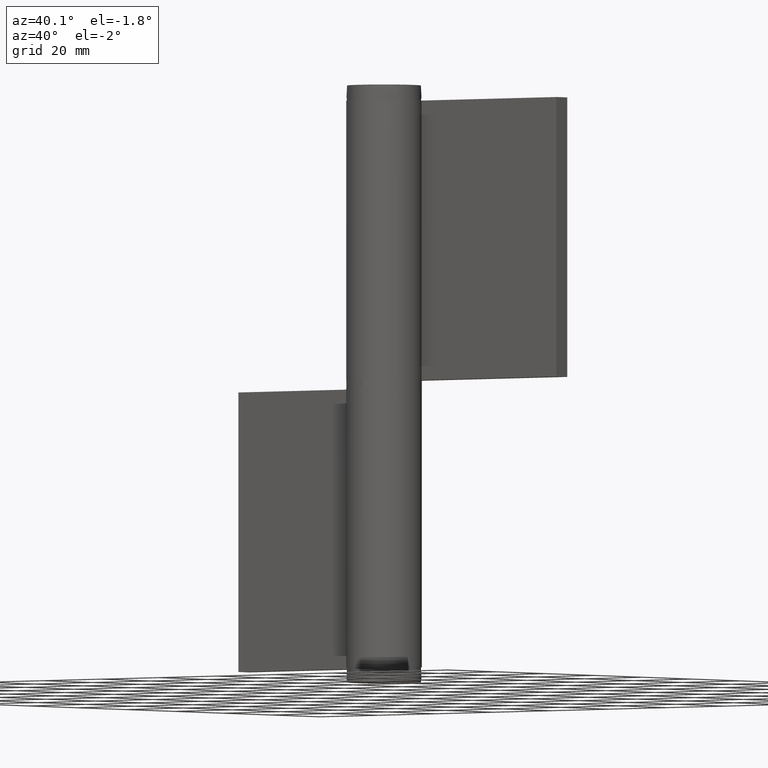
[diagram: clean part render]
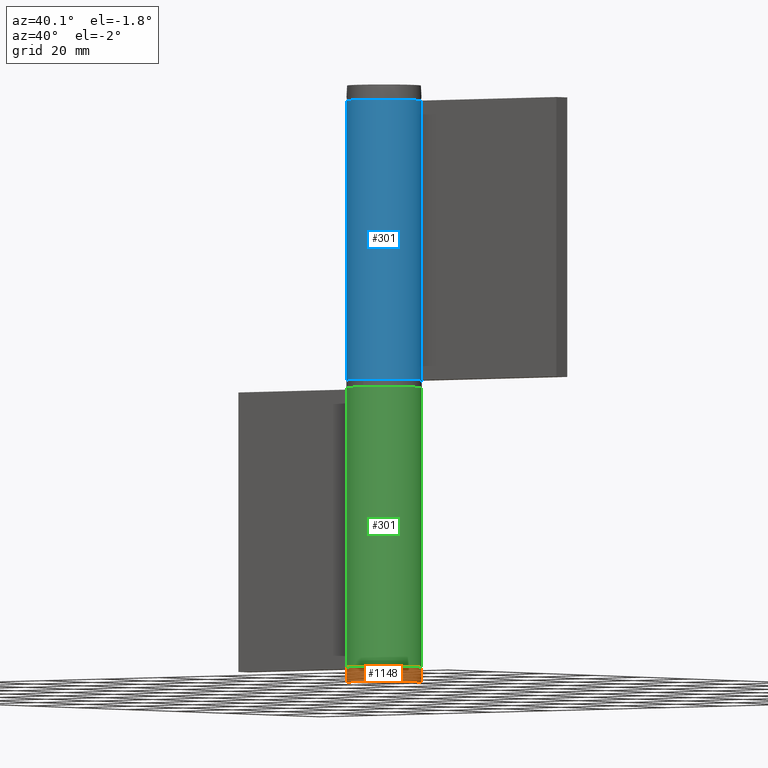
[diagram: same view with three faces highlighted in distinct colors, each labeled with its STEP entity id]
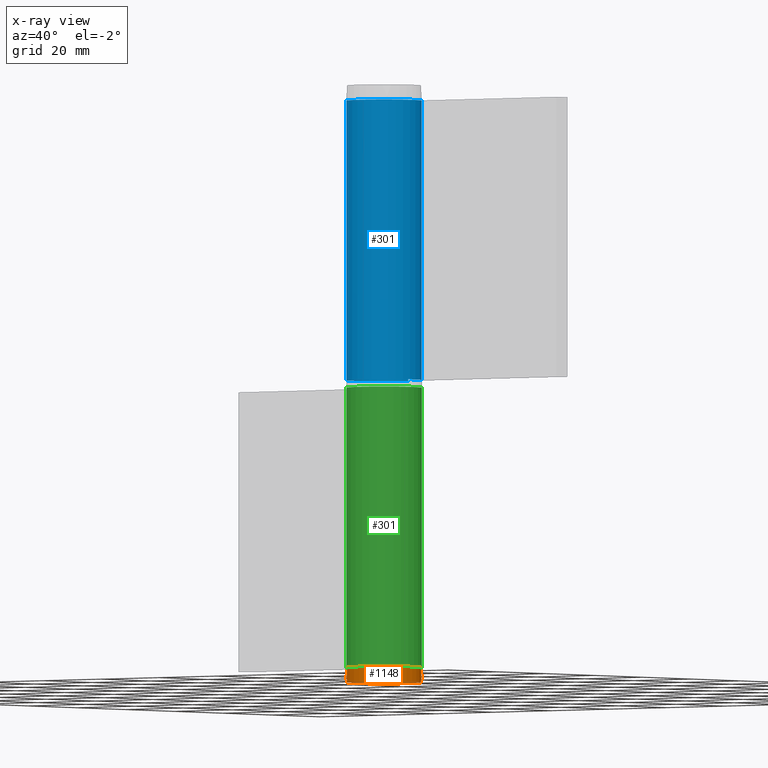
[diagram: x-ray of the same camera — body ghosted, the three highlighted faces saturated]
A machine part, auxiliary view with three faces highlighted in distinct colors.
The next image is the same camera in x-ray (body ghosted, the three faces saturated) — at least one of them is partly hidden behind the body in this view.
Their STEP definitions:

[orange] entity #1148 — the highlighted face is a freeform B-spline surface patch.
#1027=CARTESIAN_POINT('',(-9.797958972278190,0.0,-3.999999994388345));
#1028=VERTEX_POINT('',#1027);
#1029=CARTESIAN_POINT('',(9.797958972278190,0.0,-3.999999994388345));
#1030=VERTEX_POINT('',#1029);
#1031=CARTESIAN_POINT('',(-9.797958972278190,0.0,-3.999999994388345));
#1032=CARTESIAN_POINT('',(-9.797958972278190,9.797958972278190,-3.999999994388346));
#1033=CARTESIAN_POINT('',(0.0,9.797958972278190,-3.999999994388345));
#1034=CARTESIAN_POINT('',(9.797958972278190,9.797958972278190,-3.999999994388346));
#1035=CARTESIAN_POINT('',(9.797958972278190,0.0,-3.999999994388345));
#1043=(BOUNDED_CURVE()B_SPLINE_CURVE(2,(#1031,#1032,#1033,#1034,#1035),.UNSPECIFIED.,.F.,.U.)B_SPLINE_CURVE_WITH_KNOTS((3,2,3),(0.0,0.250000000000000,0.500000000000000),.UNSPECIFIED.)CURVE()GEOMETRIC_REPRESENTATION_ITEM()RATIONAL_B_SPLINE_CURVE((1.0,0.707106781186547,1.0,0.707106781186547,1.0))REPRESENTATION_ITEM(''));
#1044=EDGE_CURVE('',#1028,#1030,#1043,.T.);
#1046=CARTESIAN_POINT('',(9.797958972278190,0.0,-3.999999994388345));
#1047=CARTESIAN_POINT('',(9.797958972278190,-9.797958972278190,-3.999999994388346));
#1048=CARTESIAN_POINT('',(0.0,-9.797958972278190,-3.999999994388345));
#1049=CARTESIAN_POINT('',(-9.797958972278190,-9.797958972278190,-3.999999994388346));
#1050=CARTESIAN_POINT('',(-9.797958972278190,0.0,-3.999999994388345));
#1058=(BOUNDED_CURVE()B_SPLINE_CURVE(2,(#1046,#1047,#1048,#1049,#1050),.UNSPECIFIED.,.F.,.U.)B_SPLINE_CURVE_WITH_KNOTS((3,2,3),(0.500000000000000,0.750000000000000,1.0),.UNSPECIFIED.)CURVE()GEOMETRIC_REPRESENTATION_ITEM()RATIONAL_B_SPLINE_CURVE((1.0,0.707106781186547,1.0,0.707106781186547,1.0))REPRESENTATION_ITEM(''));
#1059=EDGE_CURVE('',#1030,#1028,#1058,.T.);
#1064=CARTESIAN_POINT('',(-5.998846486579745,5.998846486579745,3.294117647058823));
#1065=CARTESIAN_POINT('',(-5.562566742101217,7.416755656134957,2.181818181818182));
#1066=CARTESIAN_POINT('',(-2.428104530282278,9.712418121129113,0.380952380952381));
#1067=CARTESIAN_POINT('',(2.428104530282278,9.712418121129113,0.380952380952381));
#1068=CARTESIAN_POINT('',(5.562566742101217,7.416755656134957,2.181818181818182));
#1069=CARTESIAN_POINT('',(5.998846486579745,5.998846486579745,3.294117647058823));
#1070=CARTESIAN_POINT('',(-7.416755656134957,5.562566742101217,2.181818181818182));
#1071=CARTESIAN_POINT('',(-7.284313590846834,7.284313590846834,0.380952380952381));
#1072=CARTESIAN_POINT('',(-3.516565181788127,10.549695545364381,-3.034482758620689));
#1073=CARTESIAN_POINT('',(3.516565181788127,10.549695545364381,-3.034482758620689));
#1074=CARTESIAN_POINT('',(7.284313590846834,7.284313590846834,0.380952380952381));
#1075=CARTESIAN_POINT('',(7.416755656134957,5.562566742101217,2.181818181818182));
#1076=CARTESIAN_POINT('',(-9.712418121129113,2.428104530282278,0.380952380952381));
#1077=CARTESIAN_POINT('',(-10.549695545364381,3.516565181788127,-3.034482758620689));
#1078=CARTESIAN_POINT('',(-6.373774391990980,6.373774391990980,-12.0));
#1079=CARTESIAN_POINT('',(6.373774391990980,6.373774391990980,-12.0));
#1080=CARTESIAN_POINT('',(10.549695545364381,3.516565181788127,-3.034482758620689));
#1081=CARTESIAN_POINT('',(9.712418121129113,2.428104530282278,0.380952380952381));
#1082=CARTESIAN_POINT('',(-9.712418121129113,-2.428104530282278,0.380952380952381));
#1083=CARTESIAN_POINT('',(-10.549695545364381,-3.516565181788127,-3.034482758620689));
#1084=CARTESIAN_POINT('',(-6.373774391990980,-6.373774391990980,-12.0));
#1085=CARTESIAN_POINT('',(6.373774391990980,-6.373774391990980,-12.0));
#1086=CARTESIAN_POINT('',(10.549695545364381,-3.516565181788127,-3.034482758620689));
#1087=CARTESIAN_POINT('',(9.712418121129113,-2.428104530282278,0.380952380952381));
#1088=CARTESIAN_POINT('',(-7.416755656134957,-5.562566742101217,2.181818181818182));
#1089=CARTESIAN_POINT('',(-7.284313590846834,-7.284313590846834,0.380952380952381));
#1090=CARTESIAN_POINT('',(-3.516565181788127,-10.549695545364381,-3.034482758620689));
#1091=CARTESIAN_POINT('',(3.516565181788127,-10.549695545364381,-3.034482758620689));
#1092=CARTESIAN_POINT('',(7.284313590846834,-7.284313590846834,0.380952380952381));
#1093=CARTESIAN_POINT('',(7.416755656134957,-5.562566742101217,2.181818181818182));
#1094=CARTESIAN_POINT('',(-5.998846486579745,-5.998846486579745,3.294117647058823));
#1095=CARTESIAN_POINT('',(-5.562566742101217,-7.416755656134957,2.181818181818182));
#1096=CARTESIAN_POINT('',(-2.428104530282278,-9.712418121129113,0.380952380952381));
#1097=CARTESIAN_POINT('',(2.428104530282278,-9.712418121129113,0.380952380952381));
#1098=CARTESIAN_POINT('',(5.562566742101217,-7.416755656134957,2.181818181818182));
#1099=CARTESIAN_POINT('',(5.998846486579745,-5.998846486579745,3.294117647058823));
#1107=(BOUNDED_SURFACE()B_SPLINE_SURFACE(2,2,((#1064,#1070,#1076,#1082,#1088,#1094),(#1065,#1071,#1077,#1083,#1089,#1095),(#1066,#1072,#1078,#1084,#1090,#1096),(#1067,#1073,#1079,#1085,#1091,#1097),(#1068,#1074,#1080,#1086,#1092,#1098),(#1069,#1075,#1081,#1087,#1093,#1099)),.UNSPECIFIED.,.F.,.F.,.U.)B_SPLINE_SURFACE_WITH_KNOTS((3,1,1,1,3),(3,1,1,1,3),(0.0,10.595365223049940,21.190730446099881,31.786095669149820,42.381460892199762),(0.0,10.595365223049940,21.190730446099881,31.786095669149820,42.381460892199762),.UNSPECIFIED.)GEOMETRIC_REPRESENTATION_ITEM()RATIONAL_B_SPLINE_SURFACE(((4.250000000000001,3.437500000000001,2.625000000000000,2.625000000000000,3.437500000000001,4.250000000000001),(3.437500000000001,2.625000000000000,1.812500000000000,1.812500000000000,2.625000000000000,3.437500000000001),(2.625000000000000,1.812500000000000,1.0,1.0,1.812500000000000,2.625000000000000),(2.625000000000000,1.812500000000000,1.0,1.0,1.812500000000000,2.625000000000000),(3.437500000000001,2.625000000000000,1.812500000000000,1.812500000000000,2.625000000000000,3.437500000000001),(4.250000000000001,3.437500000000001,2.625000000000000,2.625000000000000,3.437500000000001,4.250000000000001)))REPRESENTATION_ITEM('')SURFACE());
#1108=ORIENTED_EDGE('',*,*,#1044,.F.);
#1109=ORIENTED_EDGE('',*,*,#1059,.F.);
#1110=EDGE_LOOP('',(#1108,#1109));
#1111=FACE_OUTER_BOUND('',#1110,.T.);
#1112=CARTESIAN_POINT('',(-9.797958971132710,0.0,0.0));
#1113=VERTEX_POINT('',#1112);
#1114=CARTESIAN_POINT('',(9.797958971132710,0.0,0.0));
#1115=VERTEX_POINT('',#1114);
#1116=CARTESIAN_POINT('',(-9.797958971132710,0.0,0.0));
#1117=CARTESIAN_POINT('',(-9.797958971132710,9.797958971132710,0.0));
#1118=CARTESIAN_POINT('',(0.0,9.797958971132710,0.0));
#1119=CARTESIAN_POINT('',(9.797958971132710,9.797958971132710,0.0));
#1120=CARTESIAN_POINT('',(9.797958971132710,0.0,0.0));
#1128=(BOUNDED_CURVE()B_SPLINE_CURVE(2,(#1116,#1117,#1118,#1119,#1120),.UNSPECIFIED.,.F.,.U.)B_SPLINE_CURVE_WITH_KNOTS((3,2,3),(0.0,0.250000000000000,0.500000000000000),.UNSPECIFIED.)CURVE()GEOMETRIC_REPRESENTATION_ITEM()RATIONAL_B_SPLINE_CURVE((1.0,0.707106781186548,1.0,0.707106781186548,1.0))REPRESENTATION_ITEM(''));
#1129=EDGE_CURVE('',#1113,#1115,#1128,.T.);
#1130=ORIENTED_EDGE('',*,*,#1129,.T.);
#1131=CARTESIAN_POINT('',(9.797958971132710,0.0,0.0));
#1132=CARTESIAN_POINT('',(9.797958971132710,-9.797958971132710,0.0));
#1133=CARTESIAN_POINT('',(0.0,-9.797958971132710,0.0));
#1134=CARTESIAN_POINT('',(-9.797958971132710,-9.797958971132710,0.0));
#1135=CARTESIAN_POINT('',(-9.797958971132710,0.0,0.0));
#1143=(BOUNDED_CURVE()B_SPLINE_CURVE(2,(#1131,#1132,#1133,#1134,#1135),.UNSPECIFIED.,.F.,.U.)B_SPLINE_CURVE_WITH_KNOTS((3,2,3),(0.500000000000000,0.750000000000000,1.0),.UNSPECIFIED.)CURVE()GEOMETRIC_REPRESENTATION_ITEM()RATIONAL_B_SPLINE_CURVE((1.0,0.707106781186548,1.0,0.707106781186548,1.0))REPRESENTATION_ITEM(''));
#1144=EDGE_CURVE('',#1115,#1113,#1143,.T.);
#1145=ORIENTED_EDGE('',*,*,#1144,.T.);
#1146=EDGE_LOOP('',(#1130,#1145));
#1147=FACE_BOUND('',#1146,.T.);
#1148=ADVANCED_FACE('',(#1111,#1147),#1107,.T.);

[blue] entity #301 — the highlighted face is a freeform B-spline surface patch.
#58=CARTESIAN_POINT('',(0.0,10.0,0.0));
#59=VERTEX_POINT('',#58);
#65=CARTESIAN_POINT('',(-8.384360440725340,5.450000000000000,0.0));
#66=VERTEX_POINT('',#65);
#67=CARTESIAN_POINT('',(0.0,10.0,0.0));
#68=CARTESIAN_POINT('',(7.778645974197688,10.0,0.0));
#69=CARTESIAN_POINT('',(9.692573939780772,2.460489874371089,0.0));
#70=CARTESIAN_POINT('',(11.606501905363858,-5.079020251257823,0.0));
#71=CARTESIAN_POINT('',(4.769696007084734,-8.789197915623470,0.0));
#72=CARTESIAN_POINT('',(-2.067109891194394,-12.499375579989119,0.0));
#73=CARTESIAN_POINT('',(-7.345416193928739,-6.785636369418084,0.0));
#74=CARTESIAN_POINT('',(-12.623722496663074,-1.071897158847060,0.0));
#75=CARTESIAN_POINT('',(-8.384360440725345,5.449999999999990,0.0));
#83=(BOUNDED_CURVE()B_SPLINE_CURVE(2,(#67,#68,#69,#70,#71,#72,#73,#74,#75),.UNSPECIFIED.,.F.,.U.)B_SPLINE_CURVE_WITH_KNOTS((3,2,2,2,3),(0.0,0.250000000000000,0.500000000000000,0.750000000000000,1.0),.UNSPECIFIED.)CURVE()GEOMETRIC_REPRESENTATION_ITEM()RATIONAL_B_SPLINE_CURVE((1.0,0.789319006307687,1.0,0.789319006307687,1.0,0.789319006307687,1.0,0.789319006307687,1.0))REPRESENTATION_ITEM(''));
#84=EDGE_CURVE('',#59,#66,#83,.T.);
#164=CARTESIAN_POINT('',(-8.384360440725340,5.450000000000000,74.0));
#165=VERTEX_POINT('',#164);
#171=CARTESIAN_POINT('',(0.0,10.0,74.0));
#172=VERTEX_POINT('',#171);
#173=CARTESIAN_POINT('',(0.0,10.0,74.0));
#174=CARTESIAN_POINT('',(7.778645974197688,10.0,74.0));
#175=CARTESIAN_POINT('',(9.692573939780772,2.460489874371089,74.0));
#176=CARTESIAN_POINT('',(11.606501905363858,-5.079020251257823,74.0));
#177=CARTESIAN_POINT('',(4.769696007084734,-8.789197915623470,74.0));
#178=CARTESIAN_POINT('',(-2.067109891194394,-12.499375579989119,74.0));
#179=CARTESIAN_POINT('',(-7.345416193928739,-6.785636369418084,74.0));
#180=CARTESIAN_POINT('',(-12.623722496663074,-1.071897158847060,74.0));
#181=CARTESIAN_POINT('',(-8.384360440725345,5.449999999999990,74.0));
#189=(BOUNDED_CURVE()B_SPLINE_CURVE(2,(#173,#174,#175,#176,#177,#178,#179,#180,#181),.UNSPECIFIED.,.F.,.U.)B_SPLINE_CURVE_WITH_KNOTS((3,2,2,2,3),(0.0,0.250000000000000,0.500000000000000,0.750000000000000,1.0),.UNSPECIFIED.)CURVE()GEOMETRIC_REPRESENTATION_ITEM()RATIONAL_B_SPLINE_CURVE((1.0,0.789319006307687,1.0,0.789319006307687,1.0,0.789319006307687,1.0,0.789319006307687,1.0))REPRESENTATION_ITEM(''));
#190=EDGE_CURVE('',#172,#165,#189,.T.);
#259=CARTESIAN_POINT('',(-8.384360440725340,5.450000000000000,74.0));
#260=CARTESIAN_POINT('',(-8.384360440725340,5.450000000000000,0.0));
#261=QUASI_UNIFORM_CURVE('',1,(#259,#260),.UNSPECIFIED.,.F.,.U.);
#262=EDGE_CURVE('',#165,#66,#261,.T.);
#269=CARTESIAN_POINT('',(-8.141155183563191,5.807029557109394,75.850000000000023));
#270=CARTESIAN_POINT('',(-8.141155183563191,5.807029557109394,-1.896250000000009));
#271=CARTESIAN_POINT('',(-15.485341408594035,-4.489139795389203,75.850000000000023));
#272=CARTESIAN_POINT('',(-15.485341408594035,-4.489139795389203,-1.896250000000010));
#273=CARTESIAN_POINT('',(-3.773020732343967,-9.260902469700376,75.850000000000023));
#274=CARTESIAN_POINT('',(-3.773020732343967,-9.260902469700376,-1.896250000000009));
#275=CARTESIAN_POINT('',(7.939299943906103,-14.032665144011547,75.850000000000023));
#276=CARTESIAN_POINT('',(7.939299943906103,-14.032665144011547,-1.896250000000010));
#277=CARTESIAN_POINT('',(9.881392106600755,-1.535607383287859,75.850000000000023));
#278=CARTESIAN_POINT('',(9.881392106600755,-1.535607383287859,-1.896250000000009));
#279=CARTESIAN_POINT('',(11.823484269295408,10.961450377435828,75.850000000000023));
#280=CARTESIAN_POINT('',(11.823484269295408,10.961450377435828,-1.896250000000010));
#281=CARTESIAN_POINT('',(-0.784590957278452,9.969173337331274,75.850000000000023));
#282=CARTESIAN_POINT('',(-0.784590957278452,9.969173337331274,-1.896250000000009));
#290=(BOUNDED_SURFACE()B_SPLINE_SURFACE(1,2,((#269,#271,#273,#275,#277,#279,#281),(#270,#272,#274,#276,#278,#280,#282)),.UNSPECIFIED.,.F.,.F.,.U.)B_SPLINE_SURFACE_WITH_KNOTS((2,2),(3,2,2,3),(0.0,77.746250000000032),(0.0,19.365472961108001,38.730945922215987,58.096418883323992),.UNSPECIFIED.)GEOMETRIC_REPRESENTATION_ITEM()RATIONAL_B_SPLINE_SURFACE(((1.0,0.620235491268260,1.0,0.620235491268260,1.0,0.620235491268260,1.0),(1.0,0.620235491268260,1.0,0.620235491268260,1.0,0.620235491268260,1.0)))REPRESENTATION_ITEM('')SURFACE());
#291=ORIENTED_EDGE('',*,*,#84,.F.);
#292=CARTESIAN_POINT('',(0.0,10.0,74.0));
#293=CARTESIAN_POINT('',(0.0,10.0,0.0));
#294=QUASI_UNIFORM_CURVE('',1,(#292,#293),.UNSPECIFIED.,.F.,.U.);
#295=EDGE_CURVE('',#172,#59,#294,.T.);
#296=ORIENTED_EDGE('',*,*,#295,.F.);
#297=ORIENTED_EDGE('',*,*,#190,.T.);
#298=ORIENTED_EDGE('',*,*,#262,.T.);
#299=EDGE_LOOP('',(#291,#296,#297,#298));
#300=FACE_OUTER_BOUND('',#299,.T.);
#301=ADVANCED_FACE('',(#300),#290,.T.);

[green] entity #301 — the highlighted face is a freeform B-spline surface patch.
#58=CARTESIAN_POINT('',(0.0,10.0,0.0));
#59=VERTEX_POINT('',#58);
#65=CARTESIAN_POINT('',(-8.384360440725340,5.450000000000000,0.0));
#66=VERTEX_POINT('',#65);
#67=CARTESIAN_POINT('',(0.0,10.0,0.0));
#68=CARTESIAN_POINT('',(7.778645974197688,10.0,0.0));
#69=CARTESIAN_POINT('',(9.692573939780772,2.460489874371089,0.0));
#70=CARTESIAN_POINT('',(11.606501905363858,-5.079020251257823,0.0));
#71=CARTESIAN_POINT('',(4.769696007084734,-8.789197915623470,0.0));
#72=CARTESIAN_POINT('',(-2.067109891194394,-12.499375579989119,0.0));
#73=CARTESIAN_POINT('',(-7.345416193928739,-6.785636369418084,0.0));
#74=CARTESIAN_POINT('',(-12.623722496663074,-1.071897158847060,0.0));
#75=CARTESIAN_POINT('',(-8.384360440725345,5.449999999999990,0.0));
#83=(BOUNDED_CURVE()B_SPLINE_CURVE(2,(#67,#68,#69,#70,#71,#72,#73,#74,#75),.UNSPECIFIED.,.F.,.U.)B_SPLINE_CURVE_WITH_KNOTS((3,2,2,2,3),(0.0,0.250000000000000,0.500000000000000,0.750000000000000,1.0),.UNSPECIFIED.)CURVE()GEOMETRIC_REPRESENTATION_ITEM()RATIONAL_B_SPLINE_CURVE((1.0,0.789319006307687,1.0,0.789319006307687,1.0,0.789319006307687,1.0,0.789319006307687,1.0))REPRESENTATION_ITEM(''));
#84=EDGE_CURVE('',#59,#66,#83,.T.);
#164=CARTESIAN_POINT('',(-8.384360440725340,5.450000000000000,74.0));
#165=VERTEX_POINT('',#164);
#171=CARTESIAN_POINT('',(0.0,10.0,74.0));
#172=VERTEX_POINT('',#171);
#173=CARTESIAN_POINT('',(0.0,10.0,74.0));
#174=CARTESIAN_POINT('',(7.778645974197688,10.0,74.0));
#175=CARTESIAN_POINT('',(9.692573939780772,2.460489874371089,74.0));
#176=CARTESIAN_POINT('',(11.606501905363858,-5.079020251257823,74.0));
#177=CARTESIAN_POINT('',(4.769696007084734,-8.789197915623470,74.0));
#178=CARTESIAN_POINT('',(-2.067109891194394,-12.499375579989119,74.0));
#179=CARTESIAN_POINT('',(-7.345416193928739,-6.785636369418084,74.0));
#180=CARTESIAN_POINT('',(-12.623722496663074,-1.071897158847060,74.0));
#181=CARTESIAN_POINT('',(-8.384360440725345,5.449999999999990,74.0));
#189=(BOUNDED_CURVE()B_SPLINE_CURVE(2,(#173,#174,#175,#176,#177,#178,#179,#180,#181),.UNSPECIFIED.,.F.,.U.)B_SPLINE_CURVE_WITH_KNOTS((3,2,2,2,3),(0.0,0.250000000000000,0.500000000000000,0.750000000000000,1.0),.UNSPECIFIED.)CURVE()GEOMETRIC_REPRESENTATION_ITEM()RATIONAL_B_SPLINE_CURVE((1.0,0.789319006307687,1.0,0.789319006307687,1.0,0.789319006307687,1.0,0.789319006307687,1.0))REPRESENTATION_ITEM(''));
#190=EDGE_CURVE('',#172,#165,#189,.T.);
#259=CARTESIAN_POINT('',(-8.384360440725340,5.450000000000000,74.0));
#260=CARTESIAN_POINT('',(-8.384360440725340,5.450000000000000,0.0));
#261=QUASI_UNIFORM_CURVE('',1,(#259,#260),.UNSPECIFIED.,.F.,.U.);
#262=EDGE_CURVE('',#165,#66,#261,.T.);
#269=CARTESIAN_POINT('',(-8.141155183563191,5.807029557109394,75.850000000000023));
#270=CARTESIAN_POINT('',(-8.141155183563191,5.807029557109394,-1.896250000000009));
#271=CARTESIAN_POINT('',(-15.485341408594035,-4.489139795389203,75.850000000000023));
#272=CARTESIAN_POINT('',(-15.485341408594035,-4.489139795389203,-1.896250000000010));
#273=CARTESIAN_POINT('',(-3.773020732343967,-9.260902469700376,75.850000000000023));
#274=CARTESIAN_POINT('',(-3.773020732343967,-9.260902469700376,-1.896250000000009));
#275=CARTESIAN_POINT('',(7.939299943906103,-14.032665144011547,75.850000000000023));
#276=CARTESIAN_POINT('',(7.939299943906103,-14.032665144011547,-1.896250000000010));
#277=CARTESIAN_POINT('',(9.881392106600755,-1.535607383287859,75.850000000000023));
#278=CARTESIAN_POINT('',(9.881392106600755,-1.535607383287859,-1.896250000000009));
#279=CARTESIAN_POINT('',(11.823484269295408,10.961450377435828,75.850000000000023));
#280=CARTESIAN_POINT('',(11.823484269295408,10.961450377435828,-1.896250000000010));
#281=CARTESIAN_POINT('',(-0.784590957278452,9.969173337331274,75.850000000000023));
#282=CARTESIAN_POINT('',(-0.784590957278452,9.969173337331274,-1.896250000000009));
#290=(BOUNDED_SURFACE()B_SPLINE_SURFACE(1,2,((#269,#271,#273,#275,#277,#279,#281),(#270,#272,#274,#276,#278,#280,#282)),.UNSPECIFIED.,.F.,.F.,.U.)B_SPLINE_SURFACE_WITH_KNOTS((2,2),(3,2,2,3),(0.0,77.746250000000032),(0.0,19.365472961108001,38.730945922215987,58.096418883323992),.UNSPECIFIED.)GEOMETRIC_REPRESENTATION_ITEM()RATIONAL_B_SPLINE_SURFACE(((1.0,0.620235491268260,1.0,0.620235491268260,1.0,0.620235491268260,1.0),(1.0,0.620235491268260,1.0,0.620235491268260,1.0,0.620235491268260,1.0)))REPRESENTATION_ITEM('')SURFACE());
#291=ORIENTED_EDGE('',*,*,#84,.F.);
#292=CARTESIAN_POINT('',(0.0,10.0,74.0));
#293=CARTESIAN_POINT('',(0.0,10.0,0.0));
#294=QUASI_UNIFORM_CURVE('',1,(#292,#293),.UNSPECIFIED.,.F.,.U.);
#295=EDGE_CURVE('',#172,#59,#294,.T.);
#296=ORIENTED_EDGE('',*,*,#295,.F.);
#297=ORIENTED_EDGE('',*,*,#190,.T.);
#298=ORIENTED_EDGE('',*,*,#262,.T.);
#299=EDGE_LOOP('',(#291,#296,#297,#298));
#300=FACE_OUTER_BOUND('',#299,.T.);
#301=ADVANCED_FACE('',(#300),#290,.T.);